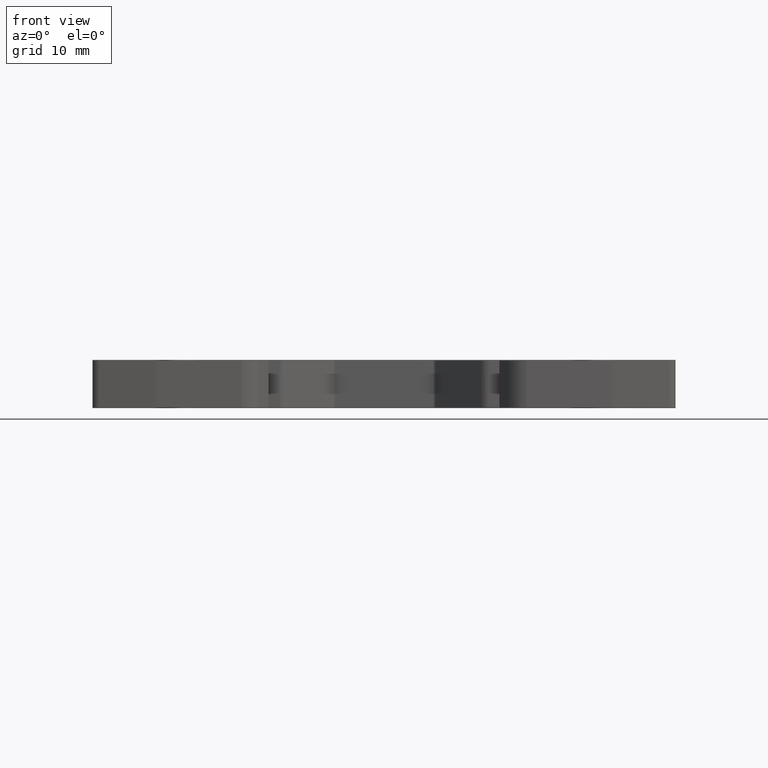
[diagram: clean part render]
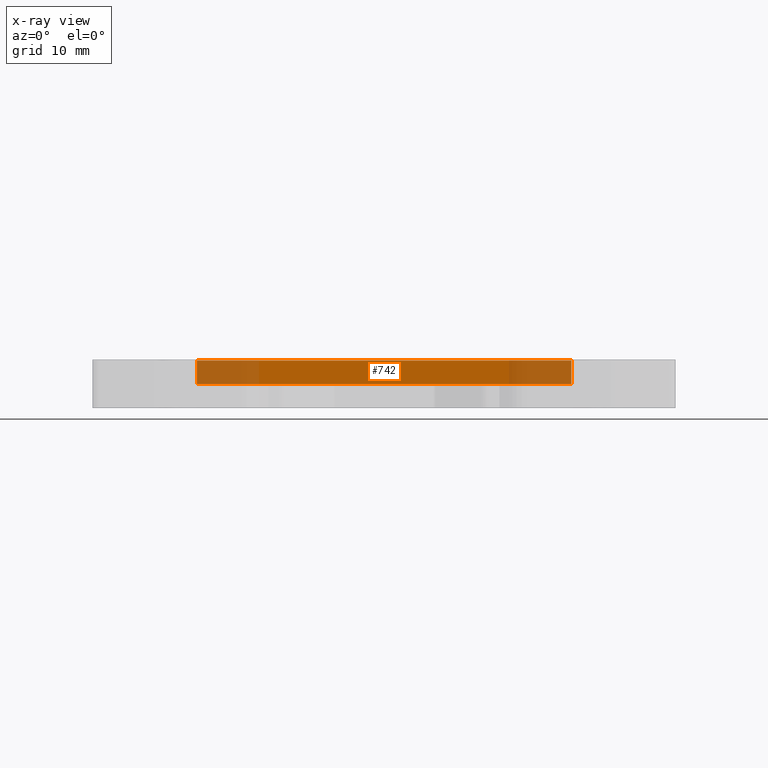
[diagram: x-ray — body ghosted, one internal face saturated and labeled with its STEP entity id]
A machine part, front view, then the same camera in x-ray: the body is ghosted and one INTERNAL B-rep face — a face not visible from any outside direction — is saturated and labeled: STEP entity #742.
In plain terms, the highlighted planar face has unit normal (0, -1, 0).
Its self-contained STEP definition (entity closure, byte-faithful):
#304 = EDGE_CURVE ( 'NONE', #20776, #22961, #20123, .T. ) ;
#344 = EDGE_CURVE ( 'NONE', #20782, #20765, #19772, .T. ) ;
#742 = ADVANCED_FACE ( 'NONE', ( #19321 ), #19334, .F. ) ;
#3606 = EDGE_LOOP ( 'NONE', ( #23981, #23914, #23939, #23938 ) ) ;
#6007 = CARTESIAN_POINT ( 'NONE',  ( 460.2522925233080300, -343.2949880069400000, -57.00000000000000000 ) ) ;
#8454 = LINE ( 'NONE', #8496, #10312 ) ;
#8476 = DIRECTION ( 'NONE',  ( -1.000000000000000000, -0.0000000000000000000, 0.0000000000000000000 ) ) ;
#8496 = CARTESIAN_POINT ( 'NONE',  ( 510.7578147152260600, -343.2949880069400000, -53.75000000000000000 ) ) ;
#8766 = LINE ( 'NONE', #8820, #10318 ) ;
#8776 = DIRECTION ( 'NONE',  ( 1.000000000000000000, 0.0000000000000000000, -0.0000000000000000000 ) ) ;
#8820 = CARTESIAN_POINT ( 'NONE',  ( 517.9269147949739800, -343.2949880069400000, -57.00000000000000000 ) ) ;
#10312 = VECTOR ( 'NONE', #8476, 1000.000000000000000 ) ;
#10318 = VECTOR ( 'NONE', #8776, 1000.000000000000000 ) ;
#14837 = CARTESIAN_POINT ( 'NONE',  ( 512.2873669321140800, -343.2949880069400000, -57.00000000000000000 ) ) ;
#14841 = CARTESIAN_POINT ( 'NONE',  ( 512.2873669321140800, -343.2949880069400000, -53.75000000000000000 ) ) ;
#14884 = CARTESIAN_POINT ( 'NONE',  ( 460.2522925233080300, -343.2949880069400000, -53.75000000000000000 ) ) ;
#19275 = DIRECTION ( 'NONE',  ( 1.000000000000000000, 2.133605144681535300E-015, 0.0000000000000000000 ) ) ;
#19321 = FACE_OUTER_BOUND ( 'NONE', #3606, .T. ) ;
#19334 = PLANE ( 'NONE',  #21524 ) ;
#19483 = CARTESIAN_POINT ( 'NONE',  ( 460.2522925233080300, -343.2949880069400000, -57.39999999999999900 ) ) ;
#19500 = DIRECTION ( 'NONE',  ( 2.133605144681535300E-015, -1.000000000000000000, 0.0000000000000000000 ) ) ;
#19605 = CARTESIAN_POINT ( 'NONE',  ( 512.2873669321140800, -343.2949880069398900, -57.39999999999999900 ) ) ;
#19614 = DIRECTION ( 'NONE',  ( -0.0000000000000000000, 0.0000000000000000000, 1.000000000000000000 ) ) ;
#19772 = LINE ( 'NONE', #19605, #22182 ) ;
#20123 = LINE ( 'NONE', #20141, #26161 ) ;
#20141 = CARTESIAN_POINT ( 'NONE',  ( 460.2522925233080300, -343.2949880069400000, -57.39999999999999900 ) ) ;
#20142 = DIRECTION ( 'NONE',  ( 0.0000000000000000000, -0.0000000000000000000, -1.000000000000000000 ) ) ;
#20765 = VERTEX_POINT ( 'NONE', #14841 ) ;
#20776 = VERTEX_POINT ( 'NONE', #14884 ) ;
#20782 = VERTEX_POINT ( 'NONE', #14837 ) ;
#21524 = AXIS2_PLACEMENT_3D ( 'NONE', #19483, #19500, #19275 ) ;
#22182 = VECTOR ( 'NONE', #19614, 1000.000000000000000 ) ;
#22961 = VERTEX_POINT ( 'NONE', #6007 ) ;
#23914 = ORIENTED_EDGE ( 'NONE', *, *, #27232, .F. ) ;
#23938 = ORIENTED_EDGE ( 'NONE', *, *, #27194, .F. ) ;
#23939 = ORIENTED_EDGE ( 'NONE', *, *, #304, .F. ) ;
#23981 = ORIENTED_EDGE ( 'NONE', *, *, #344, .F. ) ;
#26161 = VECTOR ( 'NONE', #20142, 1000.000000000000000 ) ;
#27194 = EDGE_CURVE ( 'NONE', #20765, #20776, #8454, .T. ) ;
#27232 = EDGE_CURVE ( 'NONE', #22961, #20782, #8766, .T. ) ;